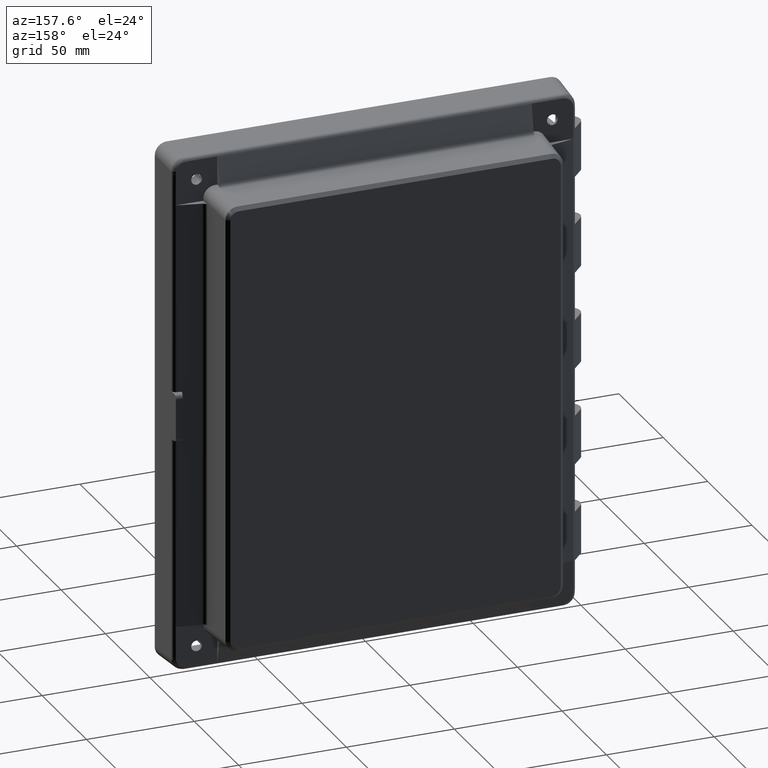
[diagram: clean part render]
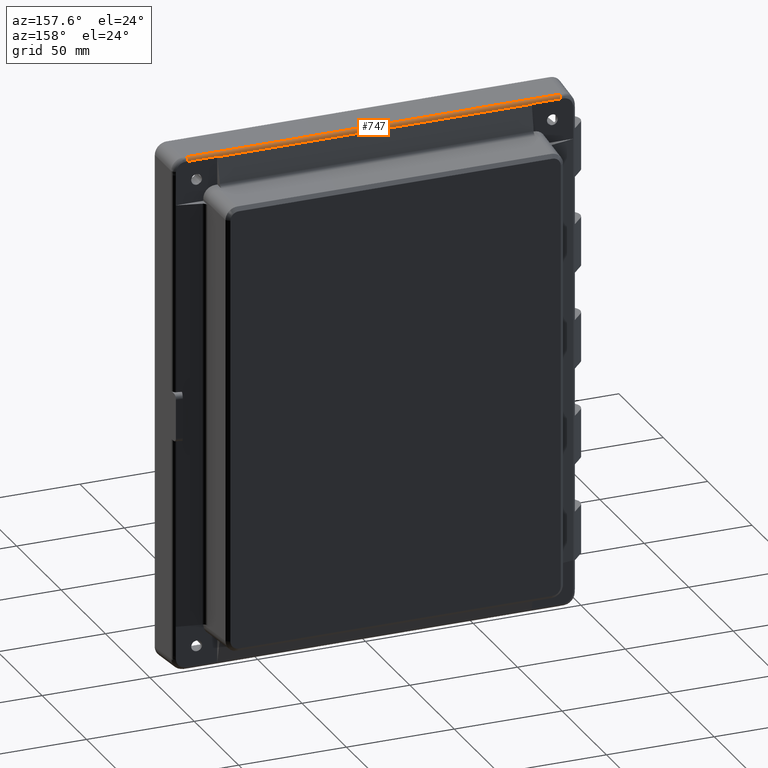
[diagram: same view with one face highlighted and labeled with its STEP entity id]
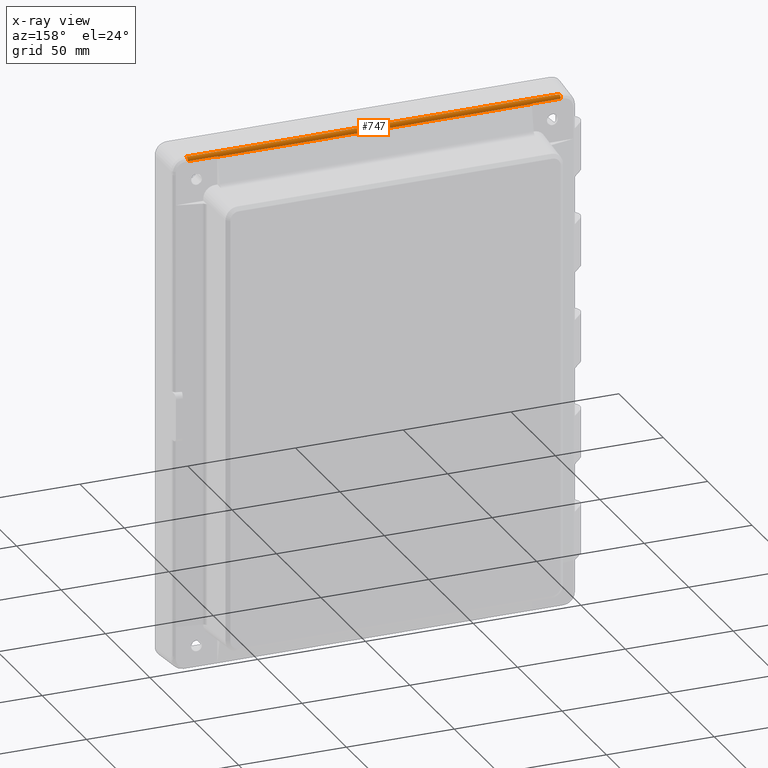
[diagram: x-ray of the same camera — body ghosted, the highlighted face saturated]
A machine part, auxiliary view. The second image highlights one B-rep face of the part: STEP entity #747.
The next image is the same camera in x-ray: the body ghosted, the highlighted face saturated — about 0% of this face is hidden behind the body in this view.
In plain terms, the highlighted cylindrical surface (edge-blend (fillet) strip) has radius 2 mm, axis along (-1, 0, 0).
Its self-contained STEP definition (entity closure, byte-faithful):
#110 = CARTESIAN_POINT ( 'NONE',  ( 87.96626240049907600, 10.31907250296160500, 118.4748041026297500 ) ) ;
#452 = AXIS2_PLACEMENT_3D ( 'NONE', #5697, #4988, #1074 ) ;
#469 =( BOUNDED_CURVE ( )  B_SPLINE_CURVE ( 3, ( #7316, #7237, #1304, #1359 ),
 .UNSPECIFIED., .F., .F. ) 
 B_SPLINE_CURVE_WITH_KNOTS ( ( 4, 4 ),
 ( 0.2094395102393153100, 0.3171184348653435200 ),
 .UNSPECIFIED. ) 
 CURVE ( )  GEOMETRIC_REPRESENTATION_ITEM ( )  RATIONAL_B_SPLINE_CURVE ( ( 1.000000000000000000, 0.9990340041431311500, 0.9990340041431311500, 1.000000000000000000 ) ) 
 REPRESENTATION_ITEM ( '' )  );
#473 = EDGE_LOOP ( 'NONE', ( #486, #3278, #6776, #6296, #5809, #5643, #8532, #7575 ) ) ;
#486 = ORIENTED_EDGE ( 'NONE', *, *, #1452, .F. ) ;
#541 = CARTESIAN_POINT ( 'NONE',  ( -72.93358525589079000, 10.28544897354363000, 118.6144011451841200 ) ) ;
#599 = DIRECTION ( 'NONE',  ( -1.000000000000000000, 0.0000000000000000000, -0.0000000000000000000 ) ) ;
#745 = EDGE_CURVE ( 'NONE', #2418, #2371, #3187, .T. ) ;
#747 = ADVANCED_FACE ( 'NONE', ( #4022 ), #3814, .T. ) ;
#795 = DIRECTION ( 'NONE',  ( 1.000000000000000000, -0.0000000000000000000, -0.0000000000000000000 ) ) ;
#806 = AXIS2_PLACEMENT_3D ( 'NONE', #3466, #7417, #6157 ) ;
#1074 = DIRECTION ( 'NONE',  ( 0.0000000000000000000, 0.0000000000000000000, -1.000000000000000000 ) ) ;
#1297 = CARTESIAN_POINT ( 'NONE',  ( -72.93475897172255900, 10.26305314132457100, 118.6826406704508200 ) ) ;
#1304 = CARTESIAN_POINT ( 'NONE',  ( 72.93358525589087500, 10.28544897354363000, 118.6144011451841200 ) ) ;
#1359 = CARTESIAN_POINT ( 'NONE',  ( 72.93475897172264400, 10.26305314132456700, 118.6826406704508200 ) ) ;
#1406 = EDGE_CURVE ( 'NONE', #8270, #3006, #6795, .T. ) ;
#1452 = EDGE_CURVE ( 'NONE', #7271, #5261, #2429, .T. ) ;
#2102 = DIRECTION ( 'NONE',  ( 1.000000000000000000, 0.0000000000000000000, 0.0000000000000000000 ) ) ;
#2207 = CARTESIAN_POINT ( 'NONE',  ( -72.93182312138230800, 10.31907250296160500, 118.4748041026297500 ) ) ;
#2260 = VECTOR ( 'NONE', #795, 1000.000000000000000 ) ;
#2356 = CARTESIAN_POINT ( 'NONE',  ( -86.46514429595929100, 8.467449213979881200, 120.0562397905033800 ) ) ;
#2371 = VERTEX_POINT ( 'NONE', #2356 ) ;
#2418 = VERTEX_POINT ( 'NONE', #7149 ) ;
#2429 =( BOUNDED_CURVE ( )  B_SPLINE_CURVE ( 3, ( #1297, #541, #5857, #7170 ),
 .UNSPECIFIED., .F., .T. ) 
 B_SPLINE_CURVE_WITH_KNOTS ( ( 4, 4 ),
 ( 2.824474218724449600, 2.932153143350478200 ),
 .UNSPECIFIED. ) 
 CURVE ( )  GEOMETRIC_REPRESENTATION_ITEM ( )  RATIONAL_B_SPLINE_CURVE ( ( 1.000000000000000000, 0.9990340041431311500, 0.9990340041431311500, 1.000000000000000000 ) ) 
 REPRESENTATION_ITEM ( '' )  );
#2614 = CARTESIAN_POINT ( 'NONE',  ( 72.93475897172264400, 10.26305314132456700, 118.6826406704508200 ) ) ;
#2846 = CARTESIAN_POINT ( 'NONE',  ( -86.46514429595929100, 8.362777301493991900, 118.0589807209942300 ) ) ;
#3006 = VERTEX_POINT ( 'NONE', #2614 ) ;
#3028 = CARTESIAN_POINT ( 'NONE',  ( 86.46514429595927700, 8.467449213979881200, 120.0562397905033800 ) ) ;
#3187 = CIRCLE ( 'NONE', #4047, 2.000000000000001800 ) ;
#3278 = ORIENTED_EDGE ( 'NONE', *, *, #5278, .T. ) ;
#3466 = CARTESIAN_POINT ( 'NONE',  ( 94.00000000000009900, 8.362777301493993700, 118.0589807209942300 ) ) ;
#3620 = LINE ( 'NONE', #110, #2260 ) ;
#3814 = CYLINDRICAL_SURFACE ( 'NONE', #806, 2.000000000000001800 ) ;
#4022 = FACE_OUTER_BOUND ( 'NONE', #473, .T. ) ;
#4047 = AXIS2_PLACEMENT_3D ( 'NONE', #2846, #2102, #6763 ) ;
#4140 = DIRECTION ( 'NONE',  ( -1.000000000000000000, 0.0000000000000000000, 0.0000000000000000000 ) ) ;
#4319 = EDGE_CURVE ( 'NONE', #8270, #4348, #6690, .T. ) ;
#4348 = VERTEX_POINT ( 'NONE', #3028 ) ;
#4415 = VECTOR ( 'NONE', #599, 1000.000000000000000 ) ;
#4525 = CARTESIAN_POINT ( 'NONE',  ( -87.96626240049913300, 8.467449213979881200, 120.0562397905033800 ) ) ;
#4593 = CARTESIAN_POINT ( 'NONE',  ( 94.00000000000009900, 10.26305314132456700, 118.6826406704508200 ) ) ;
#4823 = VECTOR ( 'NONE', #7797, 1000.000000000000000 ) ;
#4988 = DIRECTION ( 'NONE',  ( 1.000000000000000000, 0.0000000000000000000, 0.0000000000000000000 ) ) ;
#5261 = VERTEX_POINT ( 'NONE', #2207 ) ;
#5278 = EDGE_CURVE ( 'NONE', #7271, #2418, #6509, .T. ) ;
#5324 = EDGE_CURVE ( 'NONE', #5261, #7108, #3620, .T. ) ;
#5334 = CARTESIAN_POINT ( 'NONE',  ( 94.00000000000009900, 10.26305314132456700, 118.6826406704508200 ) ) ;
#5643 = ORIENTED_EDGE ( 'NONE', *, *, #1406, .T. ) ;
#5697 = CARTESIAN_POINT ( 'NONE',  ( 86.46514429595927700, 8.362777301493993700, 118.0589807209942300 ) ) ;
#5809 = ORIENTED_EDGE ( 'NONE', *, *, #4319, .F. ) ;
#5857 = CARTESIAN_POINT ( 'NONE',  ( -72.93260569285685300, 10.30414014968802400, 118.5450553014460100 ) ) ;
#6157 = DIRECTION ( 'NONE',  ( 0.0000000000000000000, 0.0000000000000000000, 1.000000000000000000 ) ) ;
#6296 = ORIENTED_EDGE ( 'NONE', *, *, #6555, .F. ) ;
#6509 = LINE ( 'NONE', #5334, #8027 ) ;
#6555 = EDGE_CURVE ( 'NONE', #4348, #2371, #6578, .T. ) ;
#6578 = LINE ( 'NONE', #4525, #4415 ) ;
#6690 = CIRCLE ( 'NONE', #452, 2.000000000000001800 ) ;
#6698 = CARTESIAN_POINT ( 'NONE',  ( -72.93475897172255900, 10.26305314132457100, 118.6826406704508200 ) ) ;
#6763 = DIRECTION ( 'NONE',  ( 0.0000000000000000000, 0.0000000000000000000, -1.000000000000000000 ) ) ;
#6776 = ORIENTED_EDGE ( 'NONE', *, *, #745, .T. ) ;
#6795 = LINE ( 'NONE', #4593, #4823 ) ;
#6970 = CARTESIAN_POINT ( 'NONE',  ( 86.46514429595926300, 10.26305314132456700, 118.6826406704508200 ) ) ;
#7108 = VERTEX_POINT ( 'NONE', #7718 ) ;
#7149 = CARTESIAN_POINT ( 'NONE',  ( -86.46514429595929100, 10.26305314132456600, 118.6826406704508200 ) ) ;
#7170 = CARTESIAN_POINT ( 'NONE',  ( -72.93182312138230800, 10.31907250296160500, 118.4748041026297500 ) ) ;
#7237 = CARTESIAN_POINT ( 'NONE',  ( 72.93260569285693900, 10.30414014968802400, 118.5450553014460100 ) ) ;
#7271 = VERTEX_POINT ( 'NONE', #6698 ) ;
#7316 = CARTESIAN_POINT ( 'NONE',  ( 72.93182312138239400, 10.31907250296160500, 118.4748041026297500 ) ) ;
#7417 = DIRECTION ( 'NONE',  ( -1.000000000000000000, 0.0000000000000000000, 0.0000000000000000000 ) ) ;
#7502 = EDGE_CURVE ( 'NONE', #7108, #3006, #469, .T. ) ;
#7575 = ORIENTED_EDGE ( 'NONE', *, *, #5324, .F. ) ;
#7718 = CARTESIAN_POINT ( 'NONE',  ( 72.93182312138239400, 10.31907250296160500, 118.4748041026297500 ) ) ;
#7797 = DIRECTION ( 'NONE',  ( -1.000000000000000000, 0.0000000000000000000, 0.0000000000000000000 ) ) ;
#8027 = VECTOR ( 'NONE', #4140, 1000.000000000000000 ) ;
#8270 = VERTEX_POINT ( 'NONE', #6970 ) ;
#8532 = ORIENTED_EDGE ( 'NONE', *, *, #7502, .F. ) ;